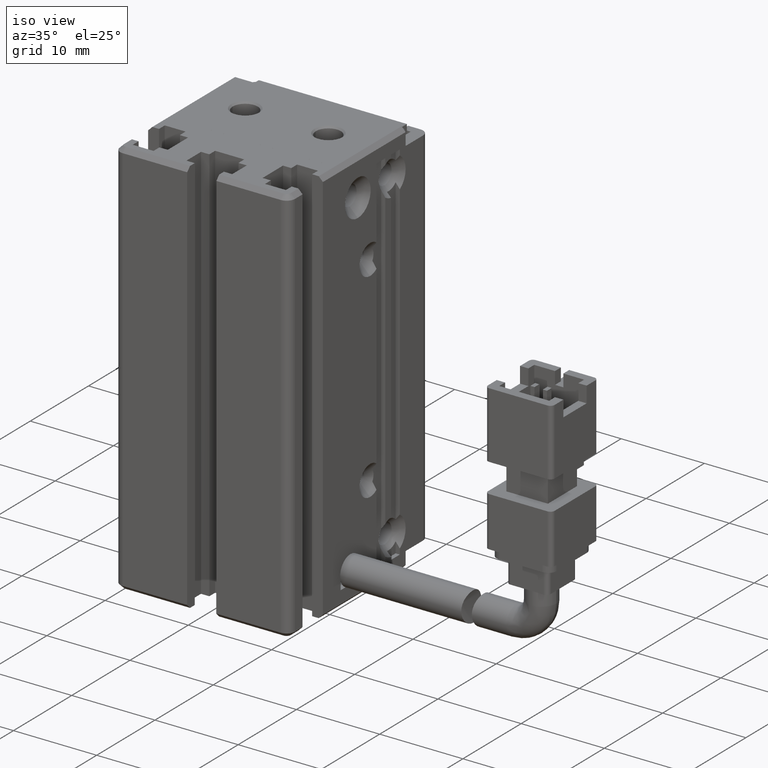
[diagram: clean part render]
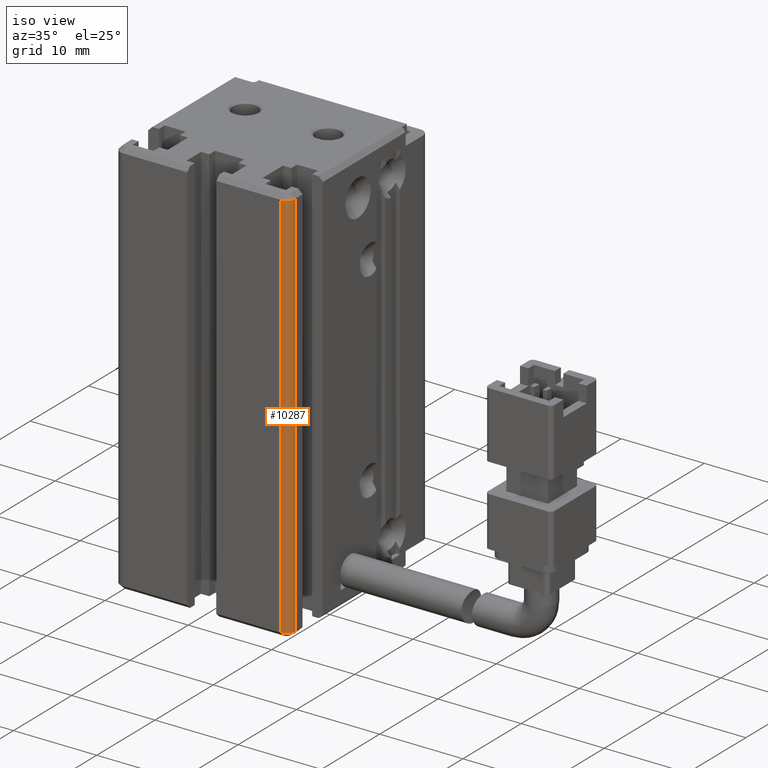
[diagram: same view with one face highlighted and labeled with its STEP entity id]
A machine part, iso view. The second image highlights one B-rep face of the part: STEP entity #10287.
In plain terms, the highlighted cylindrical surface (edge-blend (fillet) strip) has radius 1 mm, axis along (-0, -0, -1).
Its self-contained STEP definition (entity closure, byte-faithful):
#247 = DIRECTION ( 'NONE',  ( -0.0000000000000000000, 0.0000000000000000000, -1.000000000000000000 ) ) ;
#408 = CARTESIAN_POINT ( 'NONE',  ( 51.42537974683541800, 11.99073232304837000, -91.50000000000001400 ) ) ;
#1426 = ORIENTED_EDGE ( 'NONE', *, *, #23908, .F. ) ;
#2166 = VECTOR ( 'NONE', #247, 1000.000000000000000 ) ;
#2956 = CIRCLE ( 'NONE', #33221, 1.000000000035930400 ) ;
#4390 = FACE_OUTER_BOUND ( 'NONE', #32670, .T. ) ;
#4887 = CARTESIAN_POINT ( 'NONE',  ( 50.42537974683541800, 10.99073232303938300, -138.5000000000031800 ) ) ;
#5941 = AXIS2_PLACEMENT_3D ( 'NONE', #8944, #29865, #9201 ) ;
#7164 = CARTESIAN_POINT ( 'NONE',  ( 51.42537974684439900, 11.99073232304837000, -138.5000000000032100 ) ) ;
#7382 = DIRECTION ( 'NONE',  ( -1.000000000000000000, 0.0000000000000000000, 0.0000000000000000000 ) ) ;
#8574 = ORIENTED_EDGE ( 'NONE', *, *, #28232, .T. ) ;
#8799 = VERTEX_POINT ( 'NONE', #7164 ) ;
#8944 = CARTESIAN_POINT ( 'NONE',  ( 50.42537974683541800, 11.99073232304837000, -91.00000000000000000 ) ) ;
#9201 = DIRECTION ( 'NONE',  ( -1.000000000000000000, 0.0000000000000000000, 0.0000000000000000000 ) ) ;
#10287 = ADVANCED_FACE ( 'NONE', ( #4390 ), #26900, .T. ) ;
#10639 = LINE ( 'NONE', #30344, #2166 ) ;
#12078 = VECTOR ( 'NONE', #32803, 1000.000000000000000 ) ;
#15994 = VERTEX_POINT ( 'NONE', #4887 ) ;
#18759 = ORIENTED_EDGE ( 'NONE', *, *, #34264, .T. ) ;
#22472 = DIRECTION ( 'NONE',  ( -0.0000000000000000000, -0.0000000000000000000, -1.000000000000000000 ) ) ;
#22562 = CIRCLE ( 'NONE', #36029, 1.000000000000000900 ) ;
#23250 = DIRECTION ( 'NONE',  ( 0.0000000000000000000, 0.0000000000000000000, -1.000000000000000000 ) ) ;
#23908 = EDGE_CURVE ( 'NONE', #8799, #15994, #2956, .T. ) ;
#24730 = ORIENTED_EDGE ( 'NONE', *, *, #30554, .T. ) ;
#26004 = DIRECTION ( 'NONE',  ( 1.000000000000000000, 0.0000000000000000000, 0.0000000000000000000 ) ) ;
#26900 = CYLINDRICAL_SURFACE ( 'NONE', #5941, 1.000000000000000900 ) ;
#27595 = VERTEX_POINT ( 'NONE', #408 ) ;
#28232 = EDGE_CURVE ( 'NONE', #32300, #15994, #10639, .T. ) ;
#28887 = LINE ( 'NONE', #32672, #12078 ) ;
#29865 = DIRECTION ( 'NONE',  ( -0.0000000000000000000, -0.0000000000000000000, -1.000000000000000000 ) ) ;
#30344 = CARTESIAN_POINT ( 'NONE',  ( 50.42537974683541800, 10.99073232304837000, -91.00000000000000000 ) ) ;
#30554 = EDGE_CURVE ( 'NONE', #27595, #32300, #22562, .T. ) ;
#31496 = CARTESIAN_POINT ( 'NONE',  ( 50.42537974683541800, 11.99073232304837000, -91.50000000000001400 ) ) ;
#32300 = VERTEX_POINT ( 'NONE', #38527 ) ;
#32670 = EDGE_LOOP ( 'NONE', ( #8574, #1426, #18759, #24730 ) ) ;
#32672 = CARTESIAN_POINT ( 'NONE',  ( 51.42537974683541800, 11.99073232304837000, -91.00000000000000000 ) ) ;
#32803 = DIRECTION ( 'NONE',  ( 0.0000000000000000000, 0.0000000000000000000, 1.000000000000000000 ) ) ;
#33221 = AXIS2_PLACEMENT_3D ( 'NONE', #34876, #23250, #26004 ) ;
#34264 = EDGE_CURVE ( 'NONE', #8799, #27595, #28887, .T. ) ;
#34876 = CARTESIAN_POINT ( 'NONE',  ( 50.42537974683541800, 11.99073232304837000, -138.5000000000127300 ) ) ;
#36029 = AXIS2_PLACEMENT_3D ( 'NONE', #31496, #22472, #7382 ) ;
#38527 = CARTESIAN_POINT ( 'NONE',  ( 50.42537974683541800, 10.99073232307410600, -91.49999999998262000 ) ) ;